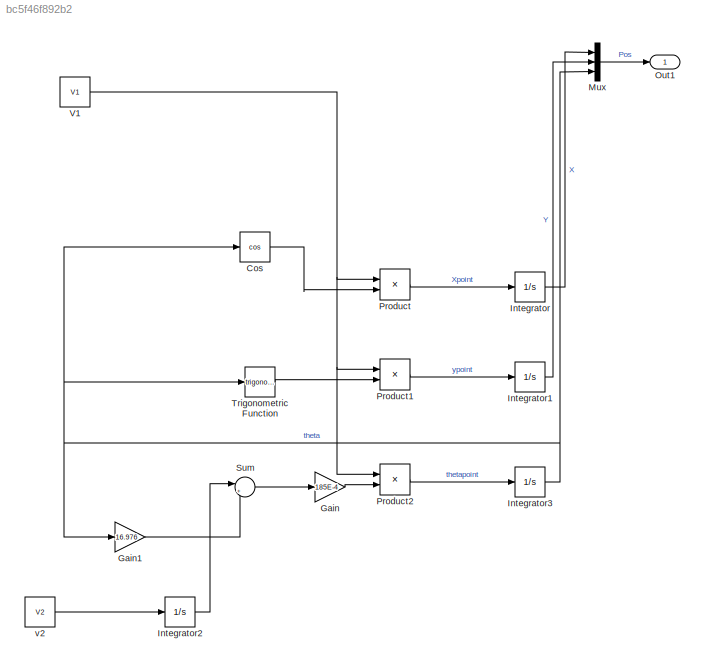
MODEL slx_bc5f46f892b2
KIND model
CONFIG AbsTol = auto
CONFIG EnableMultiTasking = off
CONFIG FixedStep = auto
CONFIG MaxStep = auto
CONFIG MinStep = auto
CONFIG RelTol = 1e-3
CONFIG SampleTimeConstraint = Unconstrained
CONFIG SolverName = VariableStepAuto
CONFIG StartTime = 0.0
CONFIG StopTime = 100
BLOCK [Trigonometry] Cos
  Operator = cos
  Ports = [1, 1]
BLOCK [Gain] Gain
  Gain = 185E-4
BLOCK [Gain] Gain1
  Gain = 16.976
BLOCK [Integrator] Integrator
  Ports = [1, 1]
BLOCK [Integrator] Integrator1
  Ports = [1, 1]
BLOCK [Integrator] Integrator2
  Ports = [1, 1]
BLOCK [Integrator] Integrator3
  Ports = [1, 1]
BLOCK [Mux] Mux
  DisplayOption = bar
  Inputs = 3
  Ports = [3, 1]
BLOCK [Outport] Out1
BLOCK [Product] Product
  Ports = [2, 1]
BLOCK [Product] Product1
  Ports = [2, 1]
BLOCK [Product] Product2
  Ports = [2, 1]
BLOCK [Sum] Sum
  Inputs = |+-
  Ports = [2, 1]
BLOCK [Trigonometry] Trigonometric Function
  Ports = [1, 1]
BLOCK [Constant] V1
  Value = V1
BLOCK [Constant] v2
  Value = V2
LINE Cos:1 -> Product:2
LINE Gain1:1 -> Sum:2
LINE Gain:1 -> Product2:2
LINE Integrator1:1 -> Mux:2
LINE Integrator2:1 -> Sum:1
NET Integrator3:1 -> Cos:1, Gain1:1, Mux:3, Trigonometric Function:1
LINE Integrator:1 -> Mux:1
LINE Mux:1 -> Out1:1
LINE Product1:1 -> Integrator1:1
LINE Product2:1 -> Integrator3:1
LINE Product:1 -> Integrator:1
LINE Sum:1 -> Gain:1
LINE Trigonometric Function:1 -> Product1:2
NET V1:1 -> Product1:1, Product2:1, Product:1
LINE v2:1 -> Integrator2:1
note: NET lines group one-source signal fan-out (src -> all destinations, sorted); 1:1 wires keep LINE
